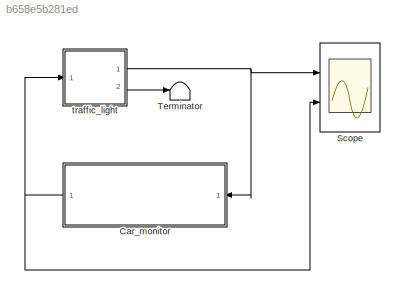
MODEL slx_b658e5b281ed
KIND model
CONFIG AbsTol = auto
CONFIG EnableMultiTasking = off
CONFIG FixedStep = auto
CONFIG MaxStep = auto
CONFIG MinStep = auto
CONFIG RelTol = 1e-3
CONFIG SampleTimeConstraint = Unconstrained
CONFIG SolverName = VariableStepAuto
CONFIG StartTime = 0.0
CONFIG StopTime = 150
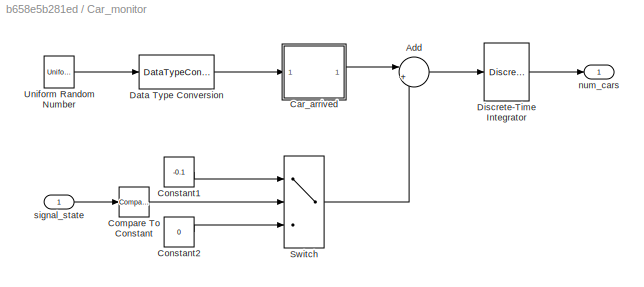
BLOCK [SubSystem] Car_monitor
  Ports = [1, 1]
  RequestExecContextInheritance = off
BLOCK [Sum] Car_monitor/Add
  Inputs = |++
  Ports = [2, 1]
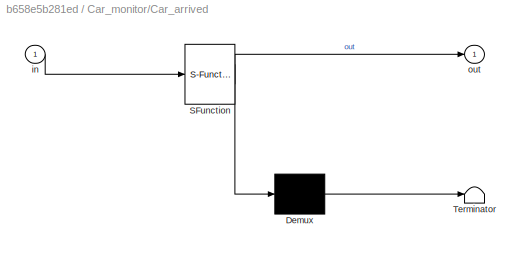
BLOCK [SubSystem] Car_monitor/Car_arrived
  ErrorFcn = Stateflow.Translate.translate
  PermitHierarchicalResolution = ExplicitOnly
  Ports = [1, 1]
  RequestExecContextInheritance = off
  SFBlockType = Chart
  TreatAsAtomicUnit = on
BLOCK [Demux] Car_monitor/Car_arrived/ Demux 
  Outputs = 1
  Ports = [1, 1]
BLOCK [S-Function] Car_monitor/Car_arrived/ SFunction 
  EnableBusSupport = on
  FunctionName = sf_sfun
  PortCounts = [1 2]
  Ports = [1, 2]
  SFcnIsStateOwnerBlock = off
  SFunctionDeploymentMode = off
  Tag = Stateflow S-Function 4
BLOCK [Terminator] Car_monitor/Car_arrived/ Terminator 
BLOCK [Inport] Car_monitor/Car_arrived/in
BLOCK [Outport] Car_monitor/Car_arrived/out
  VectorParamsAs1DForOutWhenUnconnected = off
BLOCK [Reference] Car_monitor/Compare To Constant  REF=simulink/Logic and Bit
Operations/Compare
To Constant
  Ports = [1, 1]
  SourceBlock = simulink/Logic and Bit\nOperations/Compare\nTo Constant
  SourceProductBaseCode = SL
  SourceType = Compare To Constant
BLOCK [Constant] Car_monitor/Constant1
  Value = -0.1
BLOCK [Constant] Car_monitor/Constant2
  Value = 0
BLOCK [DataTypeConversion] Car_monitor/Data Type Conversion
  RndMeth = Floor
  SaturateOnIntegerOverflow = off
BLOCK [DiscreteIntegrator] Car_monitor/Discrete-Time Integrator
  ICPrevOutput = DiscIntNeverNeededParam
  ICPrevScaledInput = DiscIntNeverNeededParam
  LimitOutput = on
  LowerSaturationLimit = 0
  Ports = [1, 1]
  SampleTime = -1
BLOCK [Switch] Car_monitor/Switch
  Criteria = u2 ~= 0
  InputSameDT = off
  SaturateOnIntegerOverflow = off
BLOCK [UniformRandomNumber] Car_monitor/Uniform Random Number
  Maximum = 100
  Minimum = 0
  SampleTime = 0
  Seed = 177836
BLOCK [Outport] Car_monitor/num_cars
  VectorParamsAs1DForOutWhenUnconnected = off
BLOCK [Inport] Car_monitor/signal_state
BLOCK [Scope] Scope
  Floating = off
  NumInputPorts = 2
  Ports = [2]
  ScopeSpecificationString = Simulink.scopes.TimeScopeBlockCfg('CurrentConfiguration', extmgr.ConfigurationSet(extmgr.Configuration('Core','General UI',true),extmgr.Configuration('Core','Source UI',true),extmgr.Configuration('Sources','WiredSimulink',true),extmgr.Configuration('Visuals','Time Domain',true,'SerializedDisplays',{struct('MinYLimReal','0.9','MaxYLimReal','1.1','YLabelReal','','MinYLimMag','0.9','MaxYLimMag','1.1'...<+1990ch>
BLOCK [Terminator] Terminator
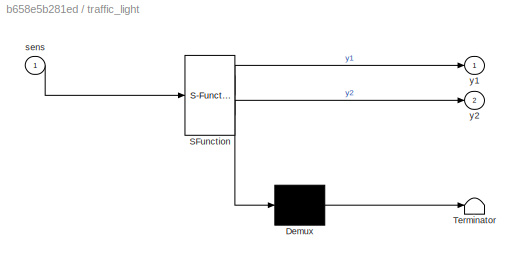
BLOCK [SubSystem] traffic_light
  ErrorFcn = Stateflow.Translate.translate
  PermitHierarchicalResolution = ExplicitOnly
  Ports = [1, 2]
  RequestExecContextInheritance = off
  SFBlockType = Chart
  TreatAsAtomicUnit = on
BLOCK [Demux] traffic_light/ Demux 
  Outputs = 1
  Ports = [1, 1]
BLOCK [S-Function] traffic_light/ SFunction 
  EnableBusSupport = on
  FunctionName = sf_sfun
  PortCounts = [1 3]
  Ports = [1, 3]
  SFcnIsStateOwnerBlock = off
  SFunctionDeploymentMode = off
  Tag = Stateflow S-Function 3
BLOCK [Terminator] traffic_light/ Terminator 
BLOCK [Inport] traffic_light/sens
BLOCK [Outport] traffic_light/y1
BLOCK [Outport] traffic_light/y2
  Port = 2
LINE Car_monitor/Add:1 -> Car_monitor/Discrete-Time Integrator:1
LINE Car_monitor/Car_arrived:1 -> Car_monitor/Add:1
LINE Car_monitor/Compare To Constant:1 -> Car_monitor/Switch:2
LINE Car_monitor/Constant1:1 -> Car_monitor/Switch:1
LINE Car_monitor/Constant2:1 -> Car_monitor/Switch:3
LINE Car_monitor/Data Type Conversion:1 -> Car_monitor/Car_arrived:1
LINE Car_monitor/Discrete-Time Integrator:1 -> Car_monitor/num_cars:1
LINE Car_monitor/Switch:1 -> Car_monitor/Add:2
LINE Car_monitor/Uniform Random Number:1 -> Car_monitor/Data Type Conversion:1
LINE Car_monitor/signal_state:1 -> Car_monitor/Compare To Constant:1
NET Car_monitor:1 -> Scope:2, traffic_light:1
NET traffic_light:1 -> Car_monitor:1, Scope:1
LINE traffic_light:2 -> Terminator:1
note: NET lines group one-source signal fan-out (src -> all destinations, sorted); 1:1 wires keep LINE
CHART traffic_light states=5 transitions=6
  STATE_LABEL 'Stop1\ny1 = RED;\ny2 = GREEN;'
  STATE_LABEL 'StopForTraffic1\ny1 = RED;\ny2 = GREEN;'
  STATE_LABEL 'StopToGo1\ny1 = RED;\ny2 = YELLOW;'
  STATE_LABEL 'GoToStop1\ny1 = YELLOW;\ny2 = RED;'
  STATE_LABEL 'Go1\ny1 = GREEN;\ny2 = RED;'
CHART Car_monitor/Car_arrived states=0 transitions=1
CHART  states=0 transitions=0
CHART  states=0 transitions=0
